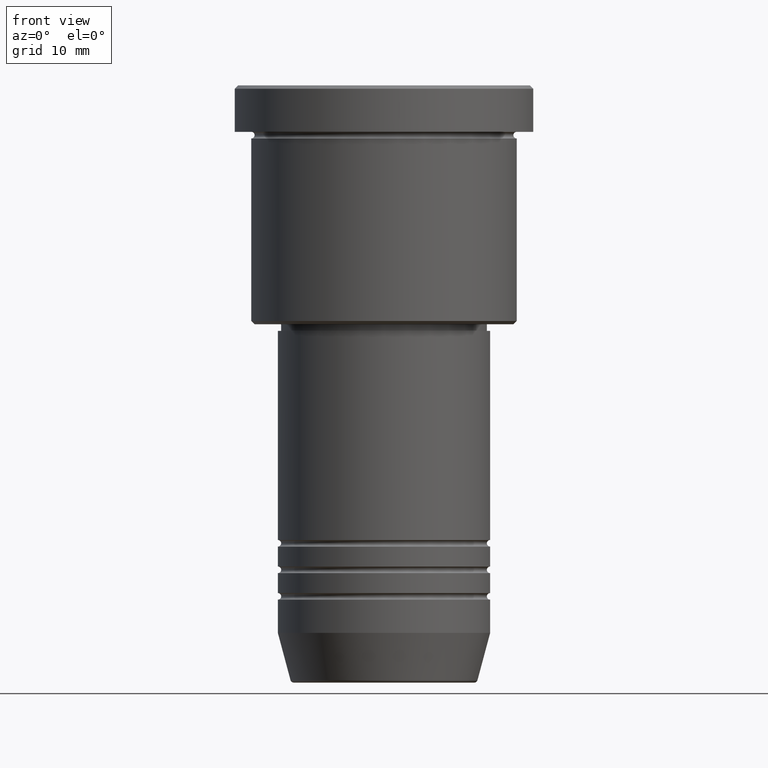
[diagram: clean part render]
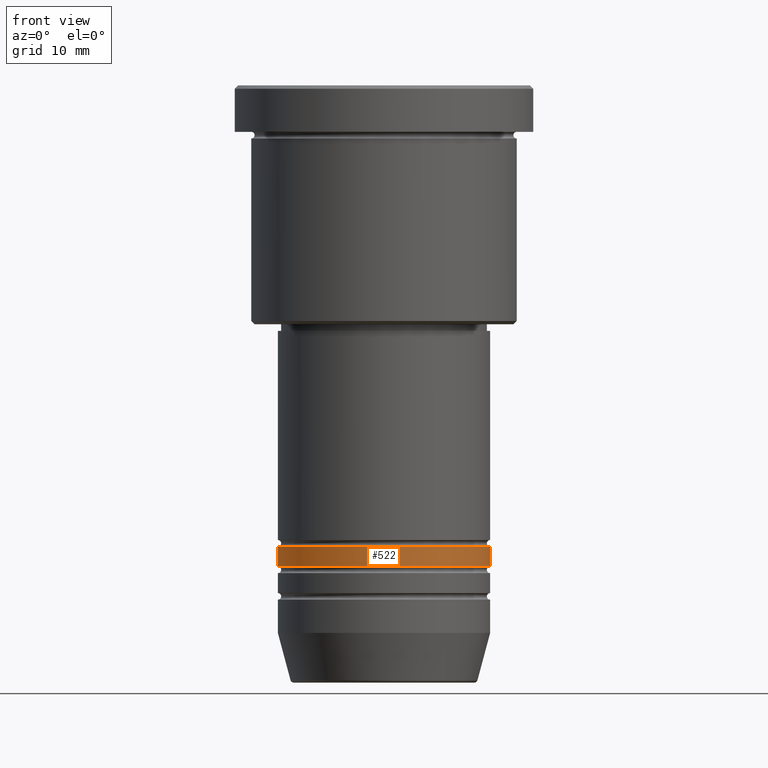
[diagram: same view with one face highlighted and labeled with its STEP entity id]
A machine part, front view. The second image highlights one B-rep face of the part: STEP entity #522.
In plain terms, the highlighted cylindrical surface (partial cylindrical patch) has radius 16 mm, axis along (-0, -0, 1).
Its self-contained STEP definition (entity closure, byte-faithful):
#6 = DIRECTION ( 'NONE',  ( -0.000000000000000000, -0.000000000000000000, 1.000000000000000000 ) ) ;
#32 = CARTESIAN_POINT ( 'NONE',  ( 16.00000000000000000, 0.000000000000000000, 0.000000000000000000 ) ) ;
#49 = ORIENTED_EDGE ( 'NONE', *, *, #741, .F. ) ;
#58 = CARTESIAN_POINT ( 'NONE',  ( 0.000000000000000000, 0.000000000000000000, -72.49999999999998579 ) ) ;
#188 = CYLINDRICAL_SURFACE ( 'NONE', #589, 16.00000000000000000 ) ;
#212 = CARTESIAN_POINT ( 'NONE',  ( -16.00000000000000355, 1.959434878635765526E-15, -72.49999999999998579 ) ) ;
#241 = VECTOR ( 'NONE', #6, 1000.000000000000000 ) ;
#297 = CIRCLE ( 'NONE', #667, 16.00000000000000000 ) ;
#341 = CARTESIAN_POINT ( 'NONE',  ( -16.00000000000000000, 1.959434878635765131E-15, -69.49999999999997158 ) ) ;
#396 = ORIENTED_EDGE ( 'NONE', *, *, #951, .T. ) ;
#403 = VERTEX_POINT ( 'NONE', #668 ) ;
#468 = LINE ( 'NONE', #1006, #1048 ) ;
#497 = DIRECTION ( 'NONE',  ( -0.000000000000000000, -0.000000000000000000, 1.000000000000000000 ) ) ;
#512 = DIRECTION ( 'NONE',  ( 1.000000000000000000, 0.000000000000000000, 0.000000000000000000 ) ) ;
#516 = EDGE_CURVE ( 'NONE', #977, #769, #468, .T. ) ;
#522 = ADVANCED_FACE ( 'NONE', ( #744 ), #188, .T. ) ;
#528 = EDGE_LOOP ( 'NONE', ( #918, #697, #396, #49 ) ) ;
#564 = DIRECTION ( 'NONE',  ( -0.000000000000000000, -0.000000000000000000, 1.000000000000000000 ) ) ;
#567 = LINE ( 'NONE', #32, #241 ) ;
#589 = AXIS2_PLACEMENT_3D ( 'NONE', #1014, #564, #828 ) ;
#631 = VERTEX_POINT ( 'NONE', #944 ) ;
#667 = AXIS2_PLACEMENT_3D ( 'NONE', #883, #1075, #729 ) ;
#668 = CARTESIAN_POINT ( 'NONE',  ( 16.00000000000000000, 0.000000000000000000, -69.49999999999997158 ) ) ;
#697 = ORIENTED_EDGE ( 'NONE', *, *, #1145, .T. ) ;
#729 = DIRECTION ( 'NONE',  ( 1.000000000000000000, 0.000000000000000000, 0.000000000000000000 ) ) ;
#741 = EDGE_CURVE ( 'NONE', #769, #403, #297, .T. ) ;
#744 = FACE_OUTER_BOUND ( 'NONE', #528, .T. ) ;
#769 = VERTEX_POINT ( 'NONE', #341 ) ;
#828 = DIRECTION ( 'NONE',  ( 1.000000000000000000, 0.000000000000000000, 0.000000000000000000 ) ) ;
#840 = AXIS2_PLACEMENT_3D ( 'NONE', #58, #497, #512 ) ;
#883 = CARTESIAN_POINT ( 'NONE',  ( 0.000000000000000000, 0.000000000000000000, -69.49999999999997158 ) ) ;
#918 = ORIENTED_EDGE ( 'NONE', *, *, #516, .F. ) ;
#944 = CARTESIAN_POINT ( 'NONE',  ( 16.00000000000000355, 0.000000000000000000, -72.49999999999998579 ) ) ;
#951 = EDGE_CURVE ( 'NONE', #631, #403, #567, .T. ) ;
#977 = VERTEX_POINT ( 'NONE', #212 ) ;
#993 = CIRCLE ( 'NONE', #840, 16.00000000000000355 ) ;
#999 = DIRECTION ( 'NONE',  ( -0.000000000000000000, -0.000000000000000000, 1.000000000000000000 ) ) ;
#1006 = CARTESIAN_POINT ( 'NONE',  ( -16.00000000000000000, 1.959434878635765131E-15, 0.000000000000000000 ) ) ;
#1014 = CARTESIAN_POINT ( 'NONE',  ( 0.000000000000000000, 0.000000000000000000, 0.000000000000000000 ) ) ;
#1048 = VECTOR ( 'NONE', #999, 1000.000000000000000 ) ;
#1075 = DIRECTION ( 'NONE',  ( -0.000000000000000000, -0.000000000000000000, 1.000000000000000000 ) ) ;
#1145 = EDGE_CURVE ( 'NONE', #977, #631, #993, .T. ) ;